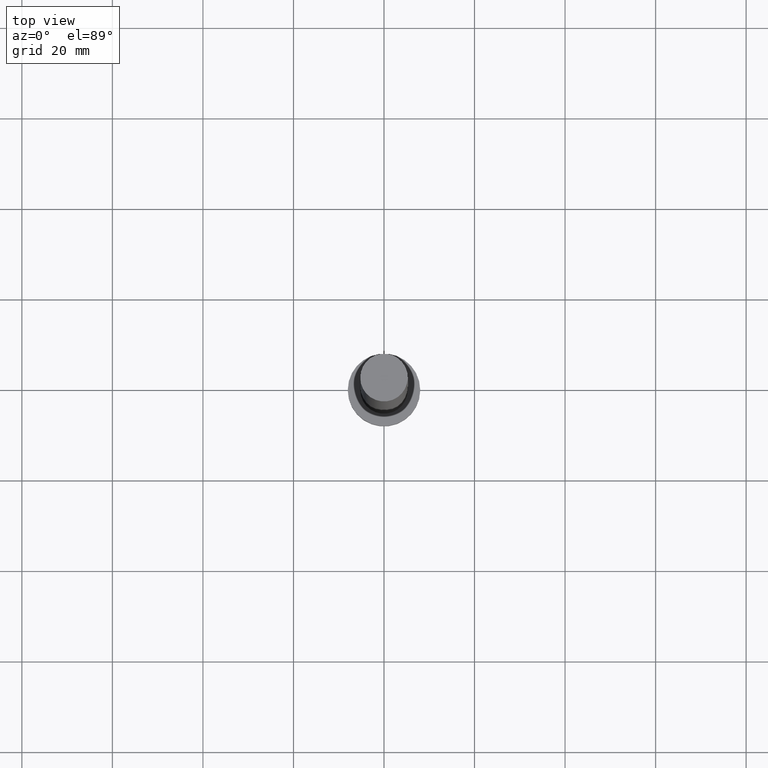
[diagram: clean part render]
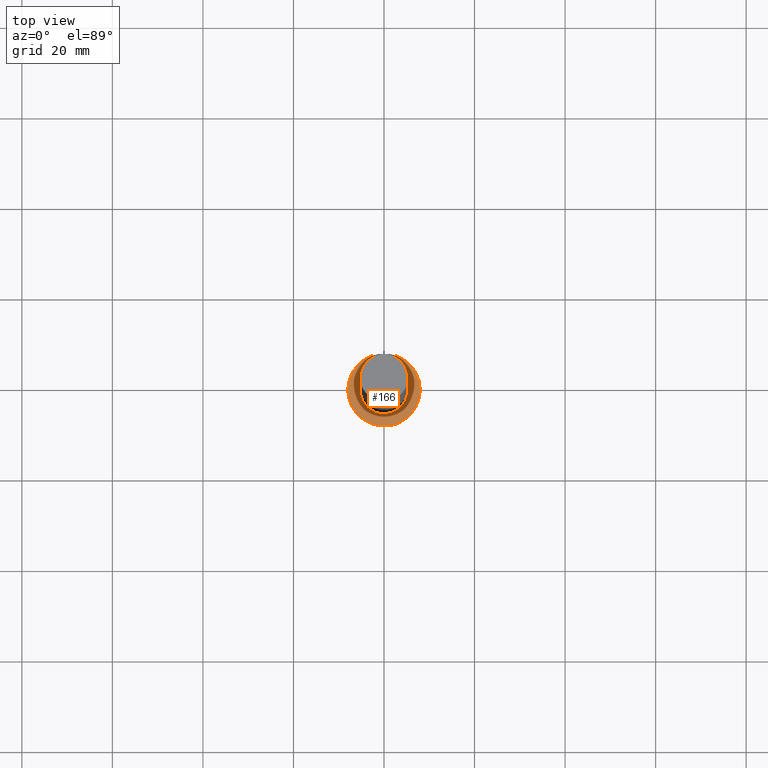
[diagram: same view with one face highlighted and labeled with its STEP entity id]
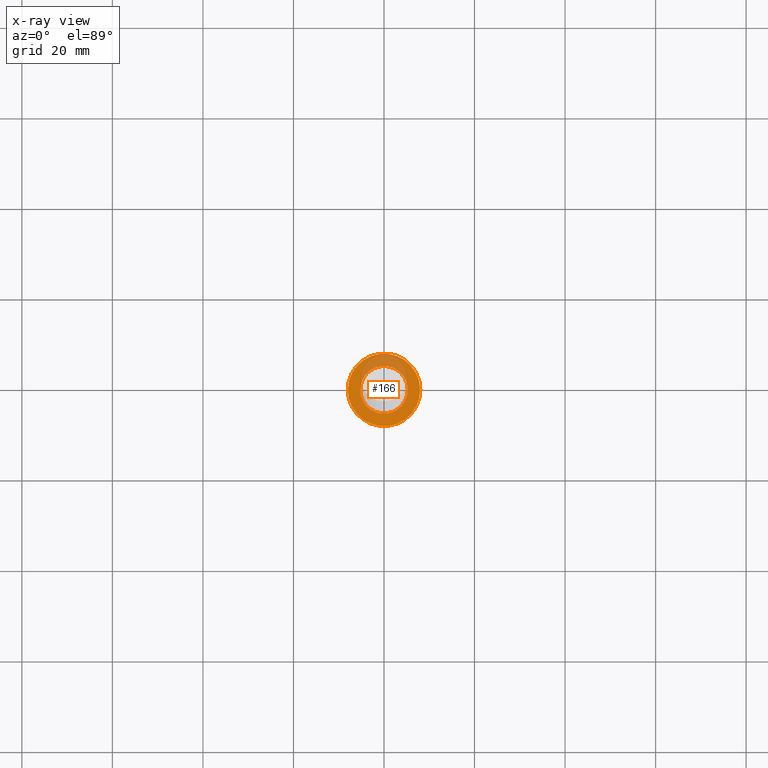
[diagram: x-ray of the same camera — body ghosted, the highlighted face saturated]
A machine part, top view. The second image highlights one B-rep face of the part: STEP entity #166.
The next image is the same camera in x-ray: the body ghosted, the highlighted face saturated — about 25% of this face is hidden behind the body in this view.
In plain terms, the highlighted planar face has unit normal (0, 0, 1).
Its self-contained STEP definition (entity closure, byte-faithful):
#8 = ORIENTED_EDGE ( 'NONE', *, *, #13, .T. ) ;
#13 = EDGE_CURVE ( 'NONE', #46, #243, #59, .T. ) ;
#14 = AXIS2_PLACEMENT_3D ( 'NONE', #127, #32, #176 ) ;
#18 = FACE_OUTER_BOUND ( 'NONE', #200, .T. ) ;
#31 = ORIENTED_EDGE ( 'NONE', *, *, #108, .T. ) ;
#32 = DIRECTION ( 'NONE',  ( 0.000000000000000000, 0.000000000000000000, 1.000000000000000000 ) ) ;
#37 = CARTESIAN_POINT ( 'NONE',  ( 0.000000000000000000, 0.000000000000000000, 5.000000000000000000 ) ) ;
#39 = CARTESIAN_POINT ( 'NONE',  ( 0.000000000000000000, 0.000000000000000000, 5.000000000000000000 ) ) ;
#46 = VERTEX_POINT ( 'NONE', #203 ) ;
#48 = CARTESIAN_POINT ( 'NONE',  ( 0.000000000000000000, 0.000000000000000000, 5.000000000000000000 ) ) ;
#59 = CIRCLE ( 'NONE', #14, 8.000000000000000000 ) ;
#61 = DIRECTION ( 'NONE',  ( 1.000000000000000000, 0.000000000000000000, 0.000000000000000000 ) ) ;
#63 = AXIS2_PLACEMENT_3D ( 'NONE', #39, #204, #61 ) ;
#65 = VERTEX_POINT ( 'NONE', #131 ) ;
#72 = AXIS2_PLACEMENT_3D ( 'NONE', #88, #112, #190 ) ;
#86 = CIRCLE ( 'NONE', #252, 5.250000000000000888 ) ;
#88 = CARTESIAN_POINT ( 'NONE',  ( 0.000000000000000000, 0.000000000000000000, 5.000000000000000000 ) ) ;
#100 = DIRECTION ( 'NONE',  ( 0.000000000000000000, 0.000000000000000000, 1.000000000000000000 ) ) ;
#101 = AXIS2_PLACEMENT_3D ( 'NONE', #37, #207, #109 ) ;
#108 = EDGE_CURVE ( 'NONE', #243, #46, #170, .T. ) ;
#109 = DIRECTION ( 'NONE',  ( 1.000000000000000000, 0.000000000000000000, 0.000000000000000000 ) ) ;
#112 = DIRECTION ( 'NONE',  ( 0.000000000000000000, 0.000000000000000000, 1.000000000000000000 ) ) ;
#118 = EDGE_CURVE ( 'NONE', #65, #153, #163, .T. ) ;
#127 = CARTESIAN_POINT ( 'NONE',  ( 0.000000000000000000, 0.000000000000000000, 5.000000000000000000 ) ) ;
#131 = CARTESIAN_POINT ( 'NONE',  ( -5.250000000000000888, 0.000000000000000000, 5.000000000000000000 ) ) ;
#134 = DIRECTION ( 'NONE',  ( 1.000000000000000000, 0.000000000000000000, 0.000000000000000000 ) ) ;
#137 = ORIENTED_EDGE ( 'NONE', *, *, #118, .F. ) ;
#141 = ORIENTED_EDGE ( 'NONE', *, *, #249, .F. ) ;
#153 = VERTEX_POINT ( 'NONE', #211 ) ;
#158 = EDGE_LOOP ( 'NONE', ( #137, #141 ) ) ;
#163 = CIRCLE ( 'NONE', #63, 5.250000000000000888 ) ;
#166 = ADVANCED_FACE ( 'NONE', ( #173, #18 ), #232, .T. ) ;
#170 = CIRCLE ( 'NONE', #101, 8.000000000000000000 ) ;
#173 = FACE_BOUND ( 'NONE', #158, .T. ) ;
#176 = DIRECTION ( 'NONE',  ( 1.000000000000000000, 0.000000000000000000, 0.000000000000000000 ) ) ;
#190 = DIRECTION ( 'NONE',  ( 1.000000000000000000, 0.000000000000000000, -0.000000000000000000 ) ) ;
#200 = EDGE_LOOP ( 'NONE', ( #31, #8 ) ) ;
#203 = CARTESIAN_POINT ( 'NONE',  ( 8.000000000000000000, 9.797174393178825657E-16, 5.000000000000000000 ) ) ;
#204 = DIRECTION ( 'NONE',  ( 0.000000000000000000, 0.000000000000000000, 1.000000000000000000 ) ) ;
#207 = DIRECTION ( 'NONE',  ( 0.000000000000000000, 0.000000000000000000, 1.000000000000000000 ) ) ;
#211 = CARTESIAN_POINT ( 'NONE',  ( 5.250000000000000888, 6.429395695523605139E-16, 5.000000000000000000 ) ) ;
#232 = PLANE ( 'NONE',  #72 ) ;
#240 = CARTESIAN_POINT ( 'NONE',  ( -8.000000000000000000, 0.000000000000000000, 5.000000000000000000 ) ) ;
#243 = VERTEX_POINT ( 'NONE', #240 ) ;
#249 = EDGE_CURVE ( 'NONE', #153, #65, #86, .T. ) ;
#252 = AXIS2_PLACEMENT_3D ( 'NONE', #48, #100, #134 ) ;